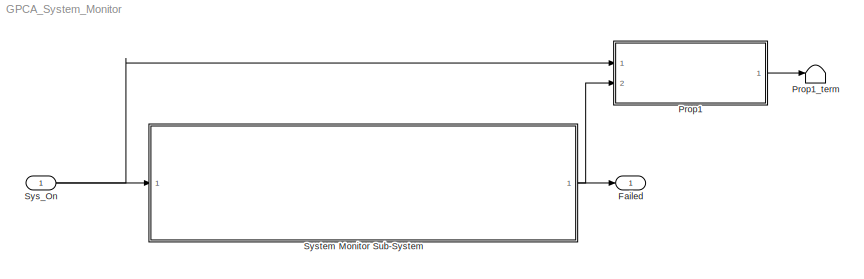
MODEL GPCA_System_Monitor
KIND model
BLOCK [Outport] Failed
  IconDisplay = Port number
  SID = 3
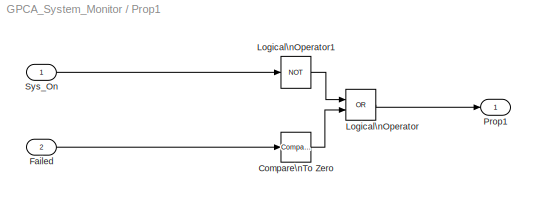
BLOCK [SubSystem] Prop1
  Ports = [2, 1]
  RequestExecContextInheritance = off
  SID = 4
  TreatAsAtomicUnit = on
  Variant = off
BLOCK [Reference] Prop1/Compare\nTo Zero  REF=simulink/Logic and Bit\nOperations/Compare\nTo Zero
  OutDataTypeStr = boolean
  Ports = [1, 1]
  SID = 13
  SourceBlock = simulink/Logic and Bit\nOperations/Compare\nTo Zero
  SourceType = Compare To Zero
  ZeroCross = on
  relop = ==
BLOCK [Inport] Prop1/Failed
  IconDisplay = Port number
  Port = 2
  SID = 7
BLOCK [Logic] Prop1/Logical\nOperator
  AllPortsSameDT = off
  Operator = OR
  OutDataTypeStr = boolean
  Ports = [2, 1]
  SID = 11
BLOCK [Logic] Prop1/Logical\nOperator1
  AllPortsSameDT = off
  Operator = NOT
  OutDataTypeStr = boolean
  Ports = [1, 1]
  SID = 12
BLOCK [Outport] Prop1/Prop1
  IconDisplay = Port number
  SID = 9
BLOCK [Inport] Prop1/Sys_On
  IconDisplay = Port number
  SID = 5
BLOCK [Terminator] Prop1_term
  SID = 10
BLOCK [Inport] Sys_On
  IconDisplay = Port number
  SID = 2
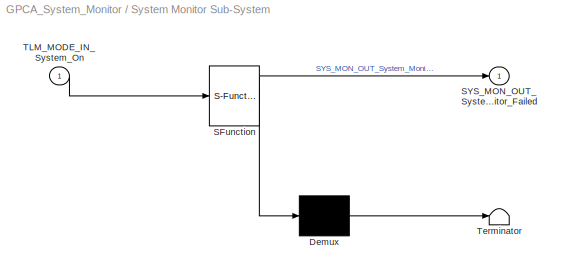
BLOCK [SubSystem] System Monitor Sub-System
  ErrorFcn = Stateflow.Translate.translate
  PermitHierarchicalResolution = ExplicitOnly
  Ports = [1, 1]
  RequestExecContextInheritance = off
  SFBlockType = Chart
  SID = 1
  TreatAsAtomicUnit = on
  Variant = off
BLOCK [Demux] System Monitor Sub-System/ Demux 
  Outputs = 1
  Ports = [1, 1]
  SID = 1::48
BLOCK [S-Function] System Monitor Sub-System/ SFunction 
  EnableBusSupport = on
  FunctionName = sf_sfun
  PortCounts = [1 2]
  Ports = [1, 2]
  SFunctionDeploymentMode = off
  SID = 1::47
  Tag = Stateflow S-Function GPCA_System_Monitor 1
BLOCK [Terminator] System Monitor Sub-System/ Terminator 
  SID = 1::49
BLOCK [Outport] System Monitor Sub-System/SYS_MON_OUT_System_Monitor_Failed
  IconDisplay = Port number
  SID = 1::46
BLOCK [Inport] System Monitor Sub-System/TLM_MODE_IN_System_On
  IconDisplay = Port number
  SID = 1::45
LINE Prop1/Compare\nTo Zero:1 -> Prop1/Logical\nOperator:2
LINE Prop1/Failed:1 -> Prop1/Compare\nTo Zero:1
LINE Prop1/Logical\nOperator1:1 -> Prop1/Logical\nOperator:1
LINE Prop1/Logical\nOperator:1 -> Prop1/Prop1:1
LINE Prop1/Sys_On:1 -> Prop1/Logical\nOperator1:1
LINE Prop1:1 -> Prop1_term:1
NET Sys_On:1 -> Prop1:1, System Monitor Sub-System:1
LINE System Monitor Sub-System/ Demux :1 -> System Monitor Sub-System/ Terminator :1
LINE System Monitor Sub-System/ SFunction :1 -> System Monitor Sub-System/ Demux :1
LINE System Monitor Sub-System/ SFunction :2 -> System Monitor Sub-System/SYS_MON_OUT_System_Monitor_Failed:1
LINE System Monitor Sub-System/TLM_MODE_IN_System_On:1 -> System Monitor Sub-System/ SFunction :1
NET System Monitor Sub-System:1 -> Failed:1, Prop1:2
note: NET lines group one-source signal fan-out (src -> all destinations, sorted); 1:1 wires keep LINE
CHART System Monitor Sub-System states=2 transitions=4
  STATE_LABEL 'System_Monitor\\nentry: SYS_MON_OUT_System_Monitor_Failed=0;\\nduring: SYS_MON_OUT_System_Monitor_Failed=0;\\nexit: SYS_MON_OUT_System_Monitor_Failed=0;'
  STATE_LABEL 'NOT_ON'
